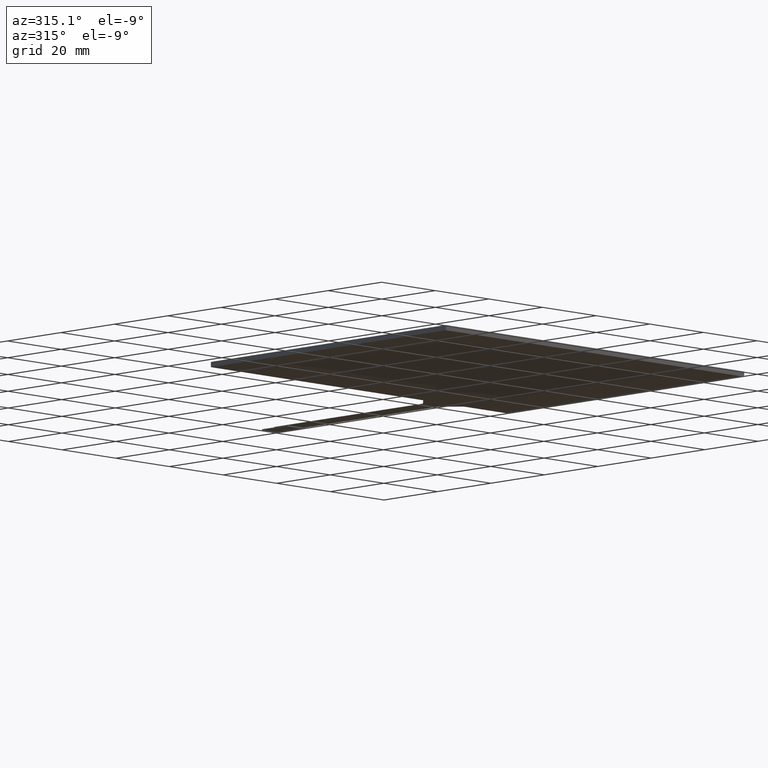
[diagram: clean part render]
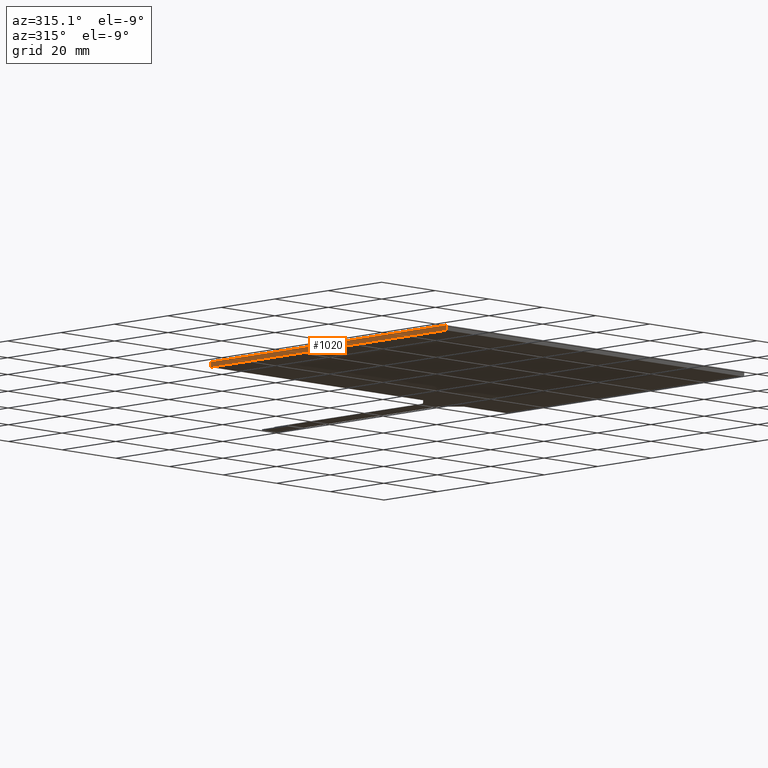
[diagram: same view with one face highlighted and labeled with its STEP entity id]
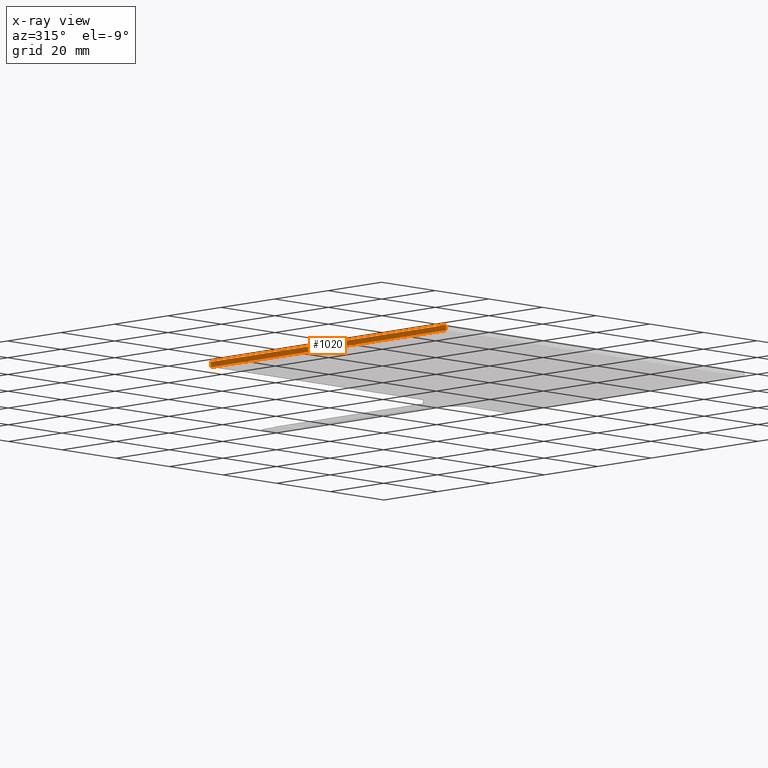
[diagram: x-ray of the same camera — body ghosted, the highlighted face saturated]
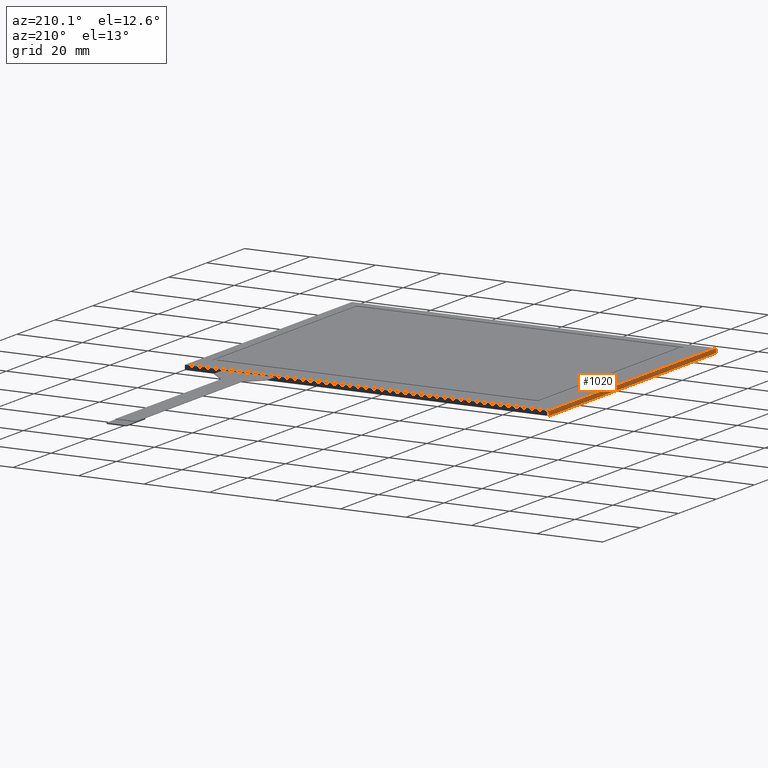
[diagram: same view with one face highlighted and labeled with its STEP entity id]
A machine part, auxiliary view. The second image highlights one B-rep face of the part: STEP entity #1020.
The next image is the same camera in x-ray: the body ghosted, the highlighted face saturated — about 0% of this face is hidden behind the body in this view.
A second angle (auxiliary view) of the same face is appended — the face is thin or edge-on in the first view.
In plain terms, the highlighted planar face has unit normal (-1, -0, 0).
Its self-contained STEP definition (entity closure, byte-faithful):
#88=PLANE('',#1103);
#139=FACE_OUTER_BOUND('',#192,.T.);
#192=EDGE_LOOP('',(#941,#942,#943,#944));
#314=LINE('',#1623,#440);
#317=LINE('',#1629,#443);
#318=LINE('',#1631,#444);
#319=LINE('',#1632,#445);
#440=VECTOR('',#1340,10.);
#443=VECTOR('',#1345,10.);
#444=VECTOR('',#1346,10.);
#445=VECTOR('',#1347,10.);
#548=VERTEX_POINT('',#1620);
#549=VERTEX_POINT('',#1622);
#551=VERTEX_POINT('',#1628);
#552=VERTEX_POINT('',#1630);
#682=EDGE_CURVE('',#548,#549,#314,.T.);
#685=EDGE_CURVE('',#548,#551,#317,.T.);
#686=EDGE_CURVE('',#552,#551,#318,.T.);
#687=EDGE_CURVE('',#549,#552,#319,.T.);
#941=ORIENTED_EDGE('',*,*,#682,.F.);
#942=ORIENTED_EDGE('',*,*,#685,.T.);
#943=ORIENTED_EDGE('',*,*,#686,.F.);
#944=ORIENTED_EDGE('',*,*,#687,.F.);
#1020=ADVANCED_FACE('',(#139),#88,.T.);
#1103=AXIS2_PLACEMENT_3D('',#1627,#1343,#1344);
#1340=DIRECTION('',(2.01858731750028E-16,-1.,0.));
#1343=DIRECTION('center_axis',(-1.,-2.01858731750028E-16,0.));
#1344=DIRECTION('ref_axis',(-2.01858731750028E-16,1.,0.));
#1345=DIRECTION('',(0.,0.,-1.));
#1346=DIRECTION('',(-2.01858731750028E-16,1.,0.));
#1347=DIRECTION('',(0.,0.,-1.));
#1620=CARTESIAN_POINT('',(-57.8,46.4,0.));
#1622=CARTESIAN_POINT('',(-57.8,-41.6,0.));
#1623=CARTESIAN_POINT('',(-57.8,46.4,0.));
#1627=CARTESIAN_POINT('Origin',(-57.8,-41.6,0.));
#1628=CARTESIAN_POINT('',(-57.8,46.4,-1.4));
#1629=CARTESIAN_POINT('',(-57.8,46.4,0.));
#1630=CARTESIAN_POINT('',(-57.8,-41.6,-1.4));
#1631=CARTESIAN_POINT('',(-57.8,46.4,-1.4));
#1632=CARTESIAN_POINT('',(-57.8,-41.6,0.));